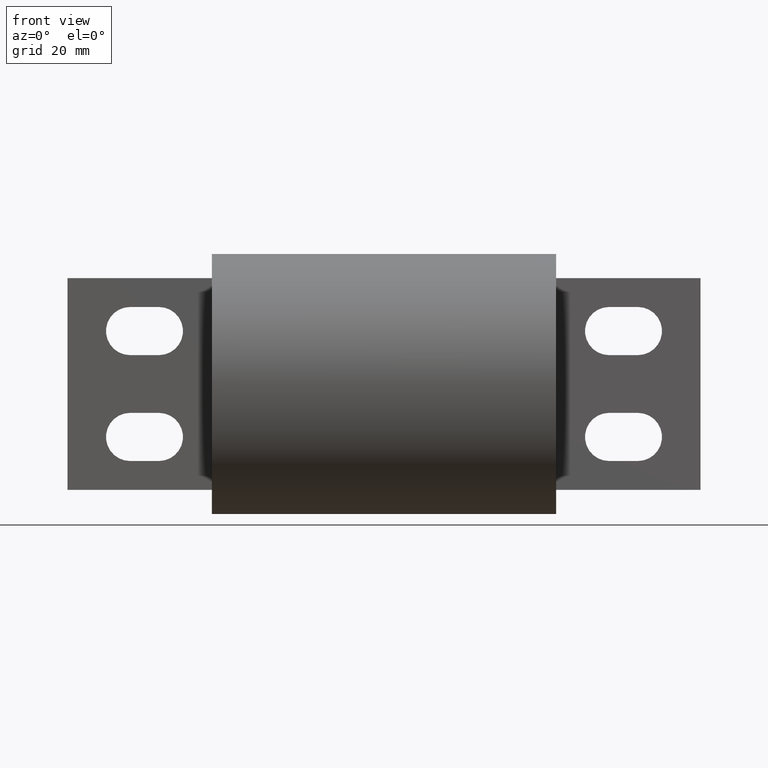
[diagram: clean part render]
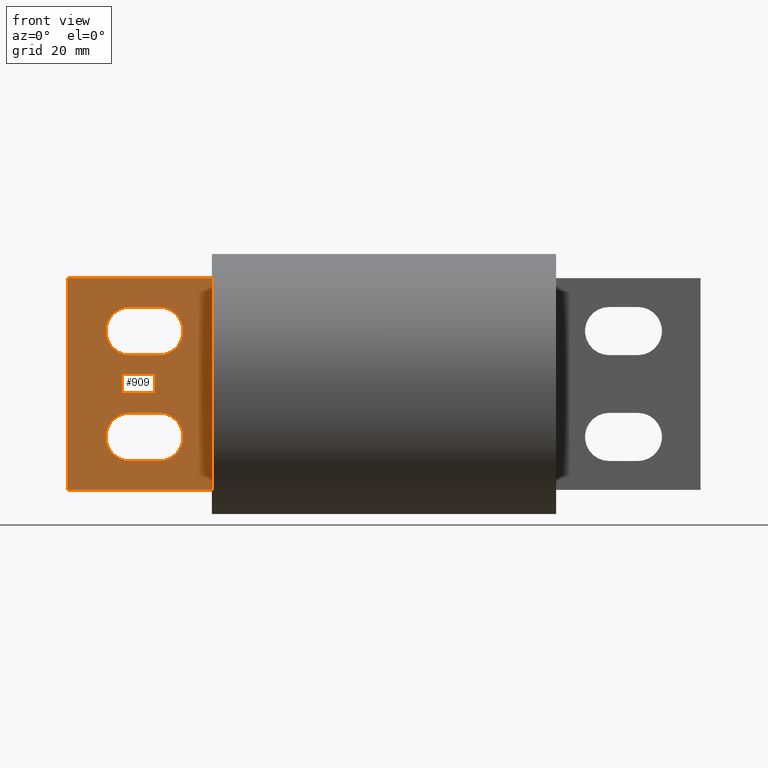
[diagram: same view with one face highlighted and labeled with its STEP entity id]
A machine part, front view. The second image highlights one B-rep face of the part: STEP entity #909.
In plain terms, the highlighted planar face has unit normal (-0, 1, 0).
Its self-contained STEP definition (entity closure, byte-faithful):
#829 = CARTESIAN_POINT ( 'NONE',  ( -2.922499999999998100, -0.2500000000000000600, 0.3749999999999995600 ) ) ;
#909 = ADVANCED_FACE ( 'NONE', ( #13198, #13350, #9217 ), #1085, .F. ) ;
#1023 = VECTOR ( 'NONE', #8750, 39.37007874015748100 ) ;
#1049 = AXIS2_PLACEMENT_3D ( 'NONE', #8818, #3039, #3399 ) ;
#1085 = PLANE ( 'NONE',  #2396 ) ;
#1254 = EDGE_LOOP ( 'NONE', ( #2921, #14150, #9067, #12504 ) ) ;
#1291 = VERTEX_POINT ( 'NONE', #13283 ) ;
#1545 = EDGE_CURVE ( 'NONE', #12175, #8793, #7020, .T. ) ;
#1618 = VECTOR ( 'NONE', #4930, 39.37007874015748100 ) ;
#1691 = EDGE_CURVE ( 'NONE', #12535, #8633, #2956, .T. ) ;
#1878 = VECTOR ( 'NONE', #3155, 39.37007874015748100 ) ;
#1896 = EDGE_CURVE ( 'NONE', #10274, #12175, #7496, .T. ) ;
#2380 = CARTESIAN_POINT ( 'NONE',  ( -2.922499999999998100, -0.2500000000000000600, 0.6874999999999991100 ) ) ;
#2396 = AXIS2_PLACEMENT_3D ( 'NONE', #13657, #4084, #13762 ) ;
#2406 = EDGE_CURVE ( 'NONE', #5440, #12535, #11088, .T. ) ;
#2649 = EDGE_CURVE ( 'NONE', #13064, #5440, #6057, .T. ) ;
#2788 = VECTOR ( 'NONE', #5847, 39.37007874015748100 ) ;
#2921 = ORIENTED_EDGE ( 'NONE', *, *, #1896, .T. ) ;
#2935 = AXIS2_PLACEMENT_3D ( 'NONE', #8151, #7524, #12543 ) ;
#2950 = VERTEX_POINT ( 'NONE', #8638 ) ;
#2956 = CIRCLE ( 'NONE', #2935, 0.3124999999999996700 ) ;
#2973 = LINE ( 'NONE', #6443, #14240 ) ;
#3039 = DIRECTION ( 'NONE',  ( 7.360183935079494200E-017, -1.000000000000000000, -5.520159270106857000E-017 ) ) ;
#3155 = DIRECTION ( 'NONE',  ( -3.455511176566955400E-017, -5.582070976144709000E-017, 1.000000000000000000 ) ) ;
#3236 = CARTESIAN_POINT ( 'NONE',  ( -3.297499999999998500, -0.2499999999999998900, -0.3749999999999996100 ) ) ;
#3399 = DIRECTION ( 'NONE',  ( 0.0000000000000000000, -1.092739197465705900E-016, 1.000000000000000000 ) ) ;
#3410 = LINE ( 'NONE', #10785, #2788 ) ;
#3483 = DIRECTION ( 'NONE',  ( 0.0000000000000000000, 1.092739197465705900E-016, -1.000000000000000000 ) ) ;
#3573 = CARTESIAN_POINT ( 'NONE',  ( -2.922499999999999400, -0.2499999999999999200, -0.9999999999999994400 ) ) ;
#3942 = LINE ( 'NONE', #13420, #6294 ) ;
#4084 = DIRECTION ( 'NONE',  ( -7.360183935079494200E-017, 1.000000000000000000, 5.582070976144709000E-017 ) ) ;
#4086 = CARTESIAN_POINT ( 'NONE',  ( -2.922499999999998100, -0.2499999999999999700, -0.3749999999999996700 ) ) ;
#4346 = EDGE_CURVE ( 'NONE', #8633, #13064, #12847, .T. ) ;
#4689 = LINE ( 'NONE', #3573, #5632 ) ;
#4757 = CARTESIAN_POINT ( 'NONE',  ( -4.109499999999997000, -0.2500000000000001100, 1.374999999999998200 ) ) ;
#4758 = CARTESIAN_POINT ( 'NONE',  ( -2.234499999999999300, -0.2500000000000000600, 1.374999999999998000 ) ) ;
#4886 = CARTESIAN_POINT ( 'NONE',  ( -3.297499999999998500, -0.2500000000000000000, 0.9999999999999990000 ) ) ;
#4930 = DIRECTION ( 'NONE',  ( 1.000000000000000000, -4.999400589604231500E-017, -5.701171636707238200E-016 ) ) ;
#5284 = EDGE_CURVE ( 'NONE', #8793, #2950, #2973, .T. ) ;
#5336 = AXIS2_PLACEMENT_3D ( 'NONE', #2380, #13366, #3483 ) ;
#5440 = VERTEX_POINT ( 'NONE', #8383 ) ;
#5632 = VECTOR ( 'NONE', #8270, 39.37007874015748100 ) ;
#5739 = AXIS2_PLACEMENT_3D ( 'NONE', #7377, #12845, #10645 ) ;
#5847 = DIRECTION ( 'NONE',  ( 1.000000000000000000, -4.999400589604233900E-017, 8.552635480869926800E-017 ) ) ;
#5985 = EDGE_CURVE ( 'NONE', #12067, #13934, #7042, .T. ) ;
#6057 = CIRCLE ( 'NONE', #5336, 0.3124999999999998300 ) ;
#6079 = DIRECTION ( 'NONE',  ( -1.000000000000000000, 4.999400589604233900E-017, 2.058707645154888000E-016 ) ) ;
#6122 = EDGE_LOOP ( 'NONE', ( #9826, #12201, #6903, #7047 ) ) ;
#6204 = VERTEX_POINT ( 'NONE', #3236 ) ;
#6294 = VECTOR ( 'NONE', #11883, 39.37007874015748100 ) ;
#6418 = CARTESIAN_POINT ( 'NONE',  ( -2.922499999999999400, -0.2499999999999999200, -0.9999999999999994400 ) ) ;
#6443 = CARTESIAN_POINT ( 'NONE',  ( -4.109499999999997000, -0.2500000000000001100, 1.374999999999998200 ) ) ;
#6598 = DIRECTION ( 'NONE',  ( 1.143035889327110600E-017, 5.582070976144709000E-017, -1.000000000000000000 ) ) ;
#6769 = ORIENTED_EDGE ( 'NONE', *, *, #5985, .F. ) ;
#6903 = ORIENTED_EDGE ( 'NONE', *, *, #4346, .F. ) ;
#6925 = ORIENTED_EDGE ( 'NONE', *, *, #6982, .F. ) ;
#6934 = EDGE_CURVE ( 'NONE', #2950, #10274, #3410, .T. ) ;
#6982 = EDGE_CURVE ( 'NONE', #13934, #6204, #3942, .T. ) ;
#6993 = ORIENTED_EDGE ( 'NONE', *, *, #8106, .F. ) ;
#7020 = LINE ( 'NONE', #4758, #11553 ) ;
#7042 = CIRCLE ( 'NONE', #1049, 0.3124999999999998300 ) ;
#7047 = ORIENTED_EDGE ( 'NONE', *, *, #1691, .F. ) ;
#7110 = CARTESIAN_POINT ( 'NONE',  ( -2.234499999999999300, -0.2500000000000000600, 1.374999999999998000 ) ) ;
#7181 = CIRCLE ( 'NONE', #5739, 0.3124999999999996700 ) ;
#7346 = CARTESIAN_POINT ( 'NONE',  ( -2.922499999999998100, -0.2500000000000000600, 0.9999999999999992200 ) ) ;
#7377 = CARTESIAN_POINT ( 'NONE',  ( -3.297499999999999400, -0.2499999999999998900, -0.6874999999999993300 ) ) ;
#7496 = LINE ( 'NONE', #11439, #1878 ) ;
#7524 = DIRECTION ( 'NONE',  ( 7.360183935079494200E-017, -1.000000000000000000, -5.520159270106857000E-017 ) ) ;
#7548 = EDGE_LOOP ( 'NONE', ( #6925, #6769, #6993, #9492 ) ) ;
#8106 = EDGE_CURVE ( 'NONE', #1291, #12067, #4689, .T. ) ;
#8151 = CARTESIAN_POINT ( 'NONE',  ( -3.297499999999998500, -0.2499999999999999700, 0.6874999999999990000 ) ) ;
#8270 = DIRECTION ( 'NONE',  ( 1.000000000000000000, -4.999400589604231500E-017, -5.701171636707238200E-016 ) ) ;
#8383 = CARTESIAN_POINT ( 'NONE',  ( -2.922499999999998100, -0.2500000000000000600, 0.9999999999999992200 ) ) ;
#8633 = VERTEX_POINT ( 'NONE', #8944 ) ;
#8638 = CARTESIAN_POINT ( 'NONE',  ( -4.109499999999999700, -0.2499999999999999700, -1.374999999999998900 ) ) ;
#8750 = DIRECTION ( 'NONE',  ( -1.000000000000000000, 4.999400589604233900E-017, -1.583756346397462300E-016 ) ) ;
#8793 = VERTEX_POINT ( 'NONE', #4757 ) ;
#8818 = CARTESIAN_POINT ( 'NONE',  ( -2.922499999999999400, -0.2499999999999999700, -0.6874999999999994400 ) ) ;
#8944 = CARTESIAN_POINT ( 'NONE',  ( -3.297499999999998500, -0.2499999999999999700, 0.3749999999999996100 ) ) ;
#9067 = ORIENTED_EDGE ( 'NONE', *, *, #5284, .T. ) ;
#9217 = FACE_OUTER_BOUND ( 'NONE', #1254, .T. ) ;
#9492 = ORIENTED_EDGE ( 'NONE', *, *, #10926, .F. ) ;
#9826 = ORIENTED_EDGE ( 'NONE', *, *, #2406, .F. ) ;
#9868 = CARTESIAN_POINT ( 'NONE',  ( -2.234499999999999700, -0.2499999999999999200, -1.374999999999998700 ) ) ;
#10274 = VERTEX_POINT ( 'NONE', #9868 ) ;
#10645 = DIRECTION ( 'NONE',  ( 0.0000000000000000000, -1.092739197465706400E-016, 1.000000000000000000 ) ) ;
#10785 = CARTESIAN_POINT ( 'NONE',  ( -2.234499999999999700, -0.2499999999999999200, -1.374999999999998700 ) ) ;
#10926 = EDGE_CURVE ( 'NONE', #6204, #1291, #7181, .T. ) ;
#11088 = LINE ( 'NONE', #7346, #1023 ) ;
#11439 = CARTESIAN_POINT ( 'NONE',  ( -2.234499999999999300, -0.2500000000000000600, 1.374999999999998000 ) ) ;
#11553 = VECTOR ( 'NONE', #6079, 39.37007874015748100 ) ;
#11883 = DIRECTION ( 'NONE',  ( -1.000000000000000000, 4.999400589604233900E-017, -1.583756346397462300E-016 ) ) ;
#12067 = VERTEX_POINT ( 'NONE', #6418 ) ;
#12175 = VERTEX_POINT ( 'NONE', #7110 ) ;
#12201 = ORIENTED_EDGE ( 'NONE', *, *, #2649, .F. ) ;
#12504 = ORIENTED_EDGE ( 'NONE', *, *, #6934, .T. ) ;
#12535 = VERTEX_POINT ( 'NONE', #4886 ) ;
#12543 = DIRECTION ( 'NONE',  ( 0.0000000000000000000, 1.092739197465706400E-016, -1.000000000000000000 ) ) ;
#12845 = DIRECTION ( 'NONE',  ( 7.360183935079494200E-017, -1.000000000000000000, -5.520159270106857000E-017 ) ) ;
#12847 = LINE ( 'NONE', #829, #1618 ) ;
#13064 = VERTEX_POINT ( 'NONE', #13149 ) ;
#13149 = CARTESIAN_POINT ( 'NONE',  ( -2.922499999999998100, -0.2500000000000000600, 0.3749999999999995600 ) ) ;
#13198 = FACE_BOUND ( 'NONE', #6122, .T. ) ;
#13283 = CARTESIAN_POINT ( 'NONE',  ( -3.297499999999999400, -0.2499999999999998600, -0.9999999999999993300 ) ) ;
#13350 = FACE_BOUND ( 'NONE', #7548, .T. ) ;
#13366 = DIRECTION ( 'NONE',  ( 7.360183935079494200E-017, -1.000000000000000000, -5.520159270106857000E-017 ) ) ;
#13420 = CARTESIAN_POINT ( 'NONE',  ( -2.922499999999998100, -0.2499999999999999700, -0.3749999999999996700 ) ) ;
#13657 = CARTESIAN_POINT ( 'NONE',  ( -2.234499999999999700, -0.2500000000000000000, -2.869851975416936000E-016 ) ) ;
#13762 = DIRECTION ( 'NONE',  ( -8.790956814906570500E-017, 5.582070976144707800E-017, -1.000000000000000000 ) ) ;
#13934 = VERTEX_POINT ( 'NONE', #4086 ) ;
#14150 = ORIENTED_EDGE ( 'NONE', *, *, #1545, .T. ) ;
#14240 = VECTOR ( 'NONE', #6598, 39.37007874015748100 ) ;